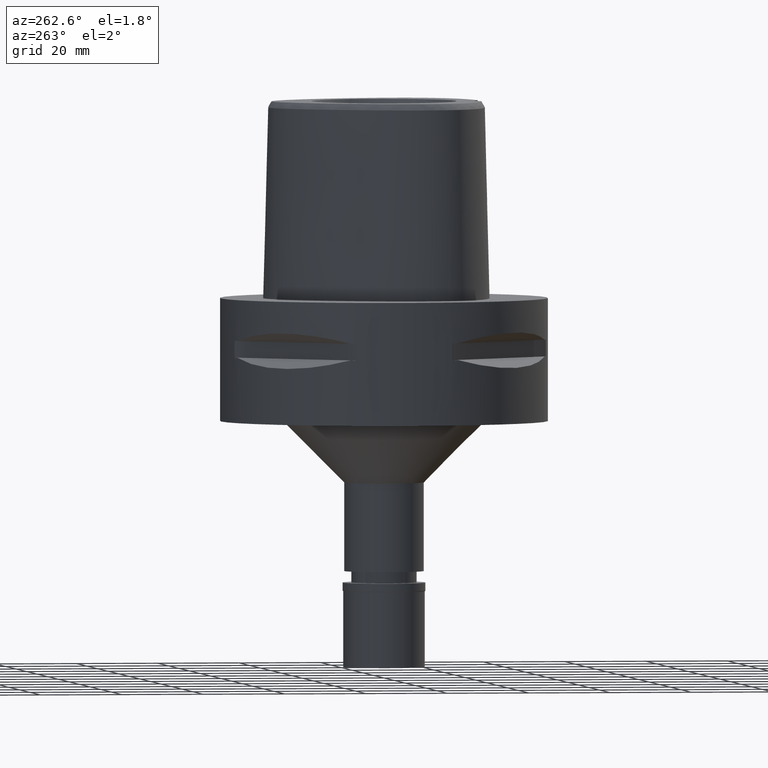
[diagram: clean part render]
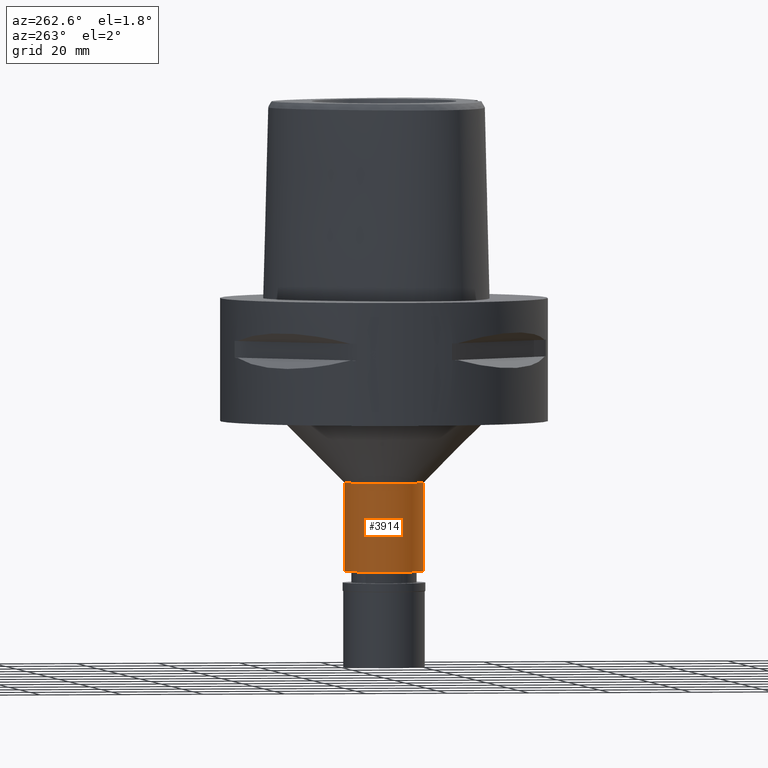
[diagram: same view with one face highlighted and labeled with its STEP entity id]
A machine part, auxiliary view. The second image highlights one B-rep face of the part: STEP entity #3914.
In plain terms, the highlighted cylindrical surface (partial cylindrical patch) has radius 9.75 mm, axis along (0, 0, -1).
Its self-contained STEP definition (entity closure, byte-faithful):
#129 = DIRECTION ( 'NONE',  ( 0.0000000000000000000, 0.0000000000000000000, -1.000000000000000000 ) ) ;
#290 = CARTESIAN_POINT ( 'NONE',  ( 0.0000000000000000000, -9.750000000000000000, -45.00000000000000000 ) ) ;
#339 = VECTOR ( 'NONE', #2369, 1000.000000000000000 ) ;
#553 = FACE_OUTER_BOUND ( 'NONE', #2780, .T. ) ;
#651 = EDGE_CURVE ( 'NONE', #2924, #5044, #2755, .T. ) ;
#807 = CARTESIAN_POINT ( 'NONE',  ( 0.0000000000000000000, 9.750000000000000000, -45.00000000000000000 ) ) ;
#872 = CARTESIAN_POINT ( 'NONE',  ( 0.0000000000000000000, 9.750000000000000000, -45.00000000000000000 ) ) ;
#1021 = DIRECTION ( 'NONE',  ( 0.0000000000000000000, 0.0000000000000000000, 1.000000000000000000 ) ) ;
#1141 = VERTEX_POINT ( 'NONE', #2735 ) ;
#1337 = DIRECTION ( 'NONE',  ( 0.0000000000000000000, -1.000000000000000000, 0.0000000000000000000 ) ) ;
#1402 = DIRECTION ( 'NONE',  ( 0.0000000000000000000, 1.000000000000000000, 0.0000000000000000000 ) ) ;
#1515 = VECTOR ( 'NONE', #2972, 1000.000000000000000 ) ;
#1827 = AXIS2_PLACEMENT_3D ( 'NONE', #4066, #129, #1337 ) ;
#1887 = CARTESIAN_POINT ( 'NONE',  ( 0.0000000000000000000, -9.750000000000000000, -45.00000000000000000 ) ) ;
#2018 = ORIENTED_EDGE ( 'NONE', *, *, #5072, .F. ) ;
#2083 = DIRECTION ( 'NONE',  ( 0.0000000000000000000, -1.000000000000000000, 0.0000000000000000000 ) ) ;
#2126 = DIRECTION ( 'NONE',  ( 0.0000000000000000000, 0.0000000000000000000, -1.000000000000000000 ) ) ;
#2369 = DIRECTION ( 'NONE',  ( 0.0000000000000000000, 0.0000000000000000000, -1.000000000000000000 ) ) ;
#2604 = CARTESIAN_POINT ( 'NONE',  ( 0.0000000000000000000, 1.274857317911999787E-14, -66.60000000000000853 ) ) ;
#2613 = LINE ( 'NONE', #290, #1515 ) ;
#2666 = ORIENTED_EDGE ( 'NONE', *, *, #651, .T. ) ;
#2735 = CARTESIAN_POINT ( 'NONE',  ( 0.0000000000000000000, -9.750000000000000000, -66.60000000000000853 ) ) ;
#2755 = LINE ( 'NONE', #807, #339 ) ;
#2780 = EDGE_LOOP ( 'NONE', ( #4725, #2018, #3640, #2666 ) ) ;
#2924 = VERTEX_POINT ( 'NONE', #872 ) ;
#2972 = DIRECTION ( 'NONE',  ( 0.0000000000000000000, 0.0000000000000000000, -1.000000000000000000 ) ) ;
#3383 = CIRCLE ( 'NONE', #1827, 9.750000000000000000 ) ;
#3640 = ORIENTED_EDGE ( 'NONE', *, *, #4070, .T. ) ;
#3748 = CARTESIAN_POINT ( 'NONE',  ( 0.0000000000000000000, 1.274857317911999787E-14, 4.100000000000000533 ) ) ;
#3831 = CARTESIAN_POINT ( 'NONE',  ( 0.0000000000000000000, 9.750000000000000000, -66.60000000000000853 ) ) ;
#3914 = ADVANCED_FACE ( 'NONE', ( #553 ), #4930, .T. ) ;
#4058 = AXIS2_PLACEMENT_3D ( 'NONE', #2604, #1021, #1402 ) ;
#4066 = CARTESIAN_POINT ( 'NONE',  ( 0.0000000000000000000, 0.0000000000000000000, -45.00000000000000000 ) ) ;
#4070 = EDGE_CURVE ( 'NONE', #4238, #2924, #3383, .T. ) ;
#4213 = EDGE_CURVE ( 'NONE', #5044, #1141, #5041, .T. ) ;
#4238 = VERTEX_POINT ( 'NONE', #1887 ) ;
#4293 = AXIS2_PLACEMENT_3D ( 'NONE', #3748, #2126, #2083 ) ;
#4725 = ORIENTED_EDGE ( 'NONE', *, *, #4213, .T. ) ;
#4930 = CYLINDRICAL_SURFACE ( 'NONE', #4293, 9.750000000000000000 ) ;
#5041 = CIRCLE ( 'NONE', #4058, 9.750000000000000000 ) ;
#5044 = VERTEX_POINT ( 'NONE', #3831 ) ;
#5072 = EDGE_CURVE ( 'NONE', #4238, #1141, #2613, .T. ) ;